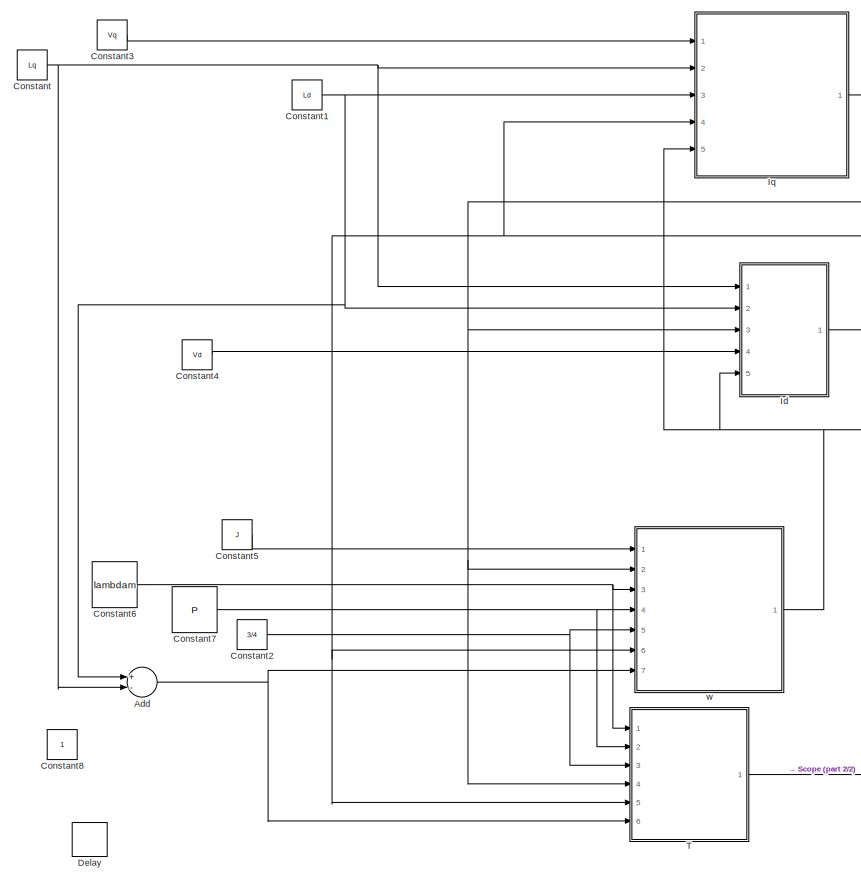
[diagram: root canvas - part 1/2, left side, full height]
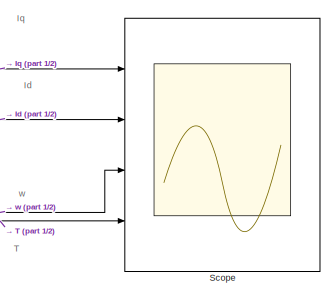
[diagram: root canvas - part 2/2, middle right region]
MODEL slx_f8c2c4e97d34
KIND model
CONFIG AbsTol = auto
CONFIG FixedStep = auto
CONFIG MaxStep = auto
CONFIG MinStep = auto
CONFIG RelTol = 1e-3
CONFIG SampleTimeConstraint = Unconstrained
CONFIG Solver = VariableStepAuto
CONFIG SolverMode = Auto
CONFIG SolverName = VariableStepAuto
CONFIG StartTime = 0.0
CONFIG StopTime = 10.0
BLOCK [Sum] Add
  InputSameDT = off
  Inputs = +-
  OutDataTypeStr = Inherit: Inherit via internal rule
  Ports = [2, 1]
  SaturateOnIntegerOverflow = off
BLOCK [Constant] Constant
  Value = Lq
BLOCK [Constant] Constant1
  Value = Ld
BLOCK [Constant] Constant2
  Value = 3/4
BLOCK [Constant] Constant3
  Value = Vq
BLOCK [Constant] Constant4
  Value = Vd
BLOCK [Constant] Constant5
  Value = J
BLOCK [Constant] Constant6
  Value = lambdam
BLOCK [Constant] Constant7
  Value = P
BLOCK [Constant] Constant8
BLOCK [Delay] Delay
  DelayLength = 1
  InitialCondition = 0
  InputPortMap = u0
  Ports = [1, 1]
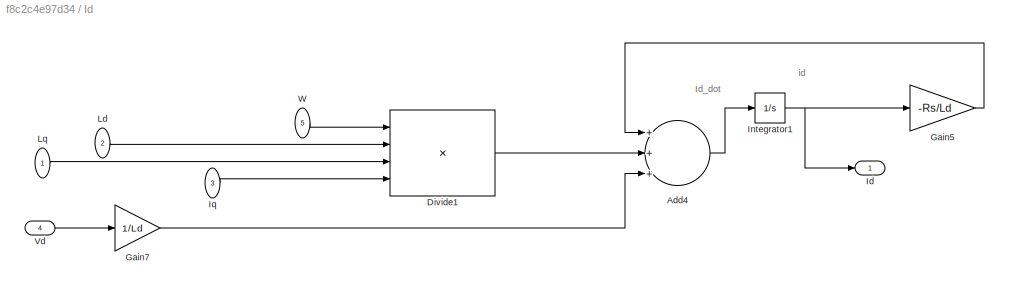
BLOCK [SubSystem] Id
  Ports = [5, 1]
  RequestExecContextInheritance = off
  Variant = off
BLOCK [Sum] Id/Add4
  InputSameDT = off
  Inputs = +++
  OutDataTypeStr = Inherit: Inherit via internal rule
  Ports = [3, 1]
  SaturateOnIntegerOverflow = off
BLOCK [Product] Id/Divide1
  InputSameDT = off
  Inputs = */**
  OutDataTypeStr = Inherit: Inherit via internal rule
  Ports = [4, 1]
  RndMeth = Floor
  SaturateOnIntegerOverflow = off
BLOCK [Gain] Id/Gain5
  Gain = -Rs/Ld
  OutDataTypeStr = Inherit: Inherit via internal rule
  ParamDataTypeStr = Inherit: Inherit via internal rule
  SaturateOnIntegerOverflow = off
BLOCK [Gain] Id/Gain7
  Gain = 1/Ld
  OutDataTypeStr = Inherit: Inherit via internal rule
  ParamDataTypeStr = Inherit: Inherit via internal rule
  SaturateOnIntegerOverflow = off
BLOCK [Outport] Id/Id
  IconDisplay = Port number
BLOCK [Integrator] Id/Integrator1
  Ports = [1, 1]
BLOCK [Inport] Id/Iq
  IconDisplay = Port number
  Port = 3
BLOCK [Inport] Id/Ld
  IconDisplay = Port number
  Port = 2
BLOCK [Inport] Id/Lq 
  IconDisplay = Port number
BLOCK [Inport] Id/Vd
  IconDisplay = Port number
  Port = 4
BLOCK [Inport] Id/W
  IconDisplay = Port number
  Port = 5
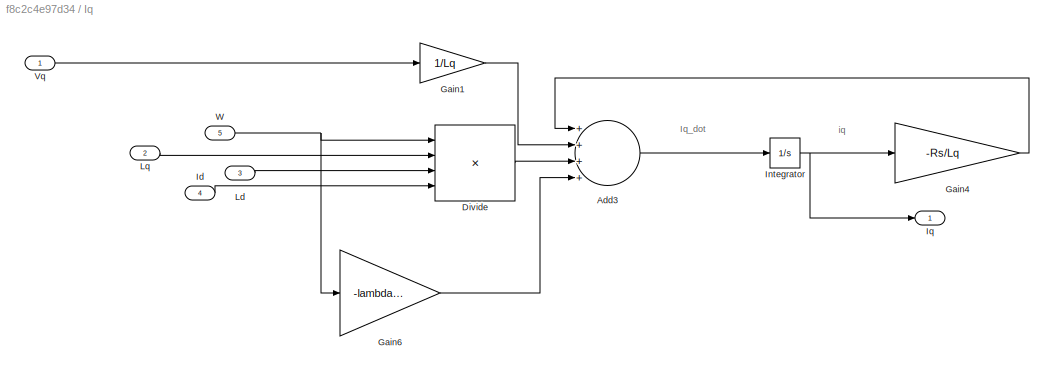
BLOCK [SubSystem] Iq
  Ports = [5, 1]
  RequestExecContextInheritance = off
  Variant = off
BLOCK [Sum] Iq/Add3
  InputSameDT = off
  Inputs = ++++
  OutDataTypeStr = Inherit: Inherit via internal rule
  Ports = [4, 1]
  SaturateOnIntegerOverflow = off
BLOCK [Product] Iq/Divide
  InputSameDT = off
  Inputs = */**
  OutDataTypeStr = Inherit: Inherit via internal rule
  Ports = [4, 1]
  RndMeth = Floor
  SaturateOnIntegerOverflow = off
BLOCK [Gain] Iq/Gain1
  Gain = 1/Lq
  OutDataTypeStr = Inherit: Inherit via internal rule
  ParamDataTypeStr = Inherit: Inherit via internal rule
  SaturateOnIntegerOverflow = off
BLOCK [Gain] Iq/Gain4
  Gain = -Rs/Lq
  OutDataTypeStr = Inherit: Inherit via internal rule
  ParamDataTypeStr = Inherit: Inherit via internal rule
  SaturateOnIntegerOverflow = off
BLOCK [Gain] Iq/Gain6
  Gain = -lambdam/Lq
  OutDataTypeStr = Inherit: Inherit via internal rule
  ParamDataTypeStr = Inherit: Inherit via internal rule
  SaturateOnIntegerOverflow = off
BLOCK [Inport] Iq/Id
  IconDisplay = Port number
  Port = 4
BLOCK [Integrator] Iq/Integrator
  Ports = [1, 1]
BLOCK [Outport] Iq/Iq
  IconDisplay = Port number
BLOCK [Inport] Iq/Ld
  IconDisplay = Port number
  Port = 3
BLOCK [Inport] Iq/Lq
  IconDisplay = Port number
  Port = 2
BLOCK [Inport] Iq/Vq
  IconDisplay = Port number
BLOCK [Inport] Iq/W
  IconDisplay = Port number
  Port = 5
BLOCK [Scope] Scope
  NumInputPorts = 4
  Ports = [4]
  ScopeSpecificationString = Simulink.scopes.TimeScopeBlockCfg('CurrentConfiguration', extmgr.ConfigurationSet(extmgr.Configuration('Core','General UI',true),extmgr.Configuration('Core','Source UI',true),extmgr.Configuration('Sources','WiredSimulink',true),extmgr.Configuration('Visuals','Time Domain',true,'SerializedDisplays',{struct('MinYLimReal','-10','MaxYLimReal','10','YLabelReal','','MinYLimMag','0','MaxYLimMag','10','Le...<+1278ch>
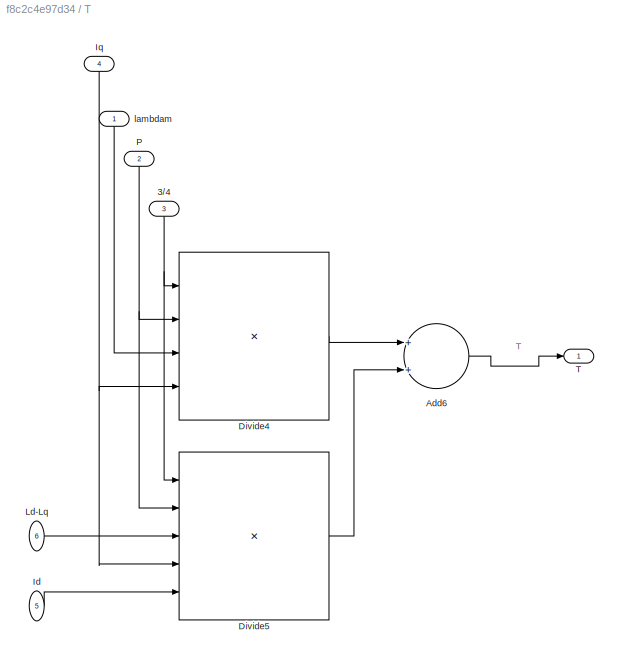
BLOCK [SubSystem] T
  Ports = [6, 1]
  RequestExecContextInheritance = off
  Variant = off
BLOCK [Inport] T/3//4
  IconDisplay = Port number
  Port = 3
BLOCK [Sum] T/Add6
  InputSameDT = off
  OutDataTypeStr = Inherit: Inherit via internal rule
  Ports = [2, 1]
  SaturateOnIntegerOverflow = off
BLOCK [Product] T/Divide4
  InputSameDT = off
  Inputs = ****
  OutDataTypeStr = Inherit: Inherit via internal rule
  Ports = [4, 1]
  RndMeth = Floor
  SaturateOnIntegerOverflow = off
BLOCK [Product] T/Divide5
  InputSameDT = off
  Inputs = *****
  OutDataTypeStr = Inherit: Inherit via internal rule
  Ports = [5, 1]
  RndMeth = Floor
  SaturateOnIntegerOverflow = off
BLOCK [Inport] T/Id
  IconDisplay = Port number
  Port = 5
BLOCK [Inport] T/Iq
  IconDisplay = Port number
  Port = 4
BLOCK [Inport] T/Ld-Lq
  IconDisplay = Port number
  Port = 6
BLOCK [Inport] T/P
  IconDisplay = Port number
  Port = 2
BLOCK [Outport] T/T
  IconDisplay = Port number
BLOCK [Inport] T/lambdam
  IconDisplay = Port number
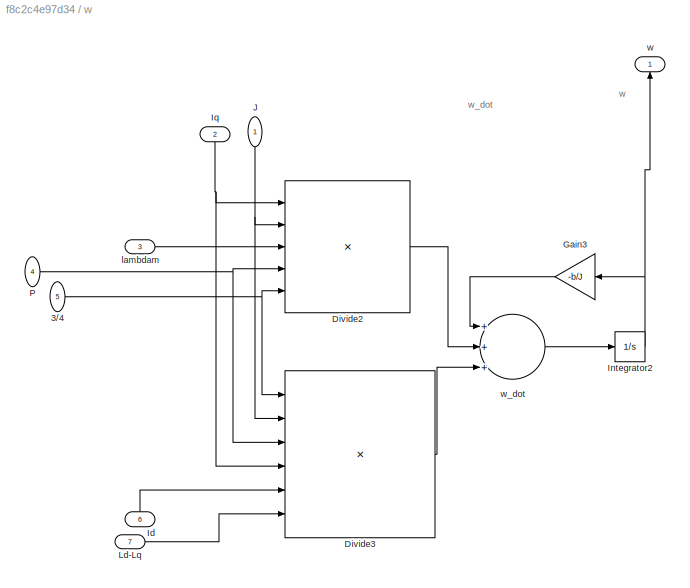
BLOCK [SubSystem] w
  Ports = [7, 1]
  RequestExecContextInheritance = off
  Variant = off
BLOCK [Inport] w/3//4 
  IconDisplay = Port number
  Port = 5
BLOCK [Product] w/Divide2
  InputSameDT = off
  Inputs = */***
  OutDataTypeStr = Inherit: Inherit via internal rule
  Ports = [5, 1]
  RndMeth = Floor
  SaturateOnIntegerOverflow = off
BLOCK [Product] w/Divide3
  InputSameDT = off
  Inputs = */****
  OutDataTypeStr = Inherit: Inherit via internal rule
  Ports = [6, 1]
  RndMeth = Floor
  SaturateOnIntegerOverflow = off
BLOCK [Gain] w/Gain3
  Gain = -b/J
  OutDataTypeStr = Inherit: Inherit via internal rule
  ParamDataTypeStr = Inherit: Inherit via internal rule
  SaturateOnIntegerOverflow = off
BLOCK [Inport] w/Id
  IconDisplay = Port number
  Port = 6
BLOCK [Integrator] w/Integrator2
  Ports = [1, 1]
BLOCK [Inport] w/Iq
  IconDisplay = Port number
  Port = 2
BLOCK [Inport] w/J
  IconDisplay = Port number
BLOCK [Inport] w/Ld-Lq
  IconDisplay = Port number
  Port = 7
BLOCK [Inport] w/P
  IconDisplay = Port number
  Port = 4
BLOCK [Inport] w/lambdam
  IconDisplay = Port number
  Port = 3
BLOCK [Outport] w/w
  IconDisplay = Port number
BLOCK [Sum] w/w_dot
  InputSameDT = off
  Inputs = +++
  OutDataTypeStr = Inherit: Inherit via internal rule
  Ports = [3, 1]
  SaturateOnIntegerOverflow = off
ANNOTATION (root): Id
ANNOTATION (root): Iq
ANNOTATION (root): T
ANNOTATION (root): w
ANNOTATION Id: Id_dot
ANNOTATION Id: id
ANNOTATION Iq: Iq_dot
ANNOTATION Iq: iq
ANNOTATION T: T
ANNOTATION w: w
ANNOTATION w: w_dot
NET Add:1 -> T:6, w:7
NET Constant1:1 -> Add:1, Id:2, Iq:3
NET Constant2:1 -> T:3, w:5
LINE Constant3:1 -> Iq:1
LINE Constant4:1 -> Id:4
LINE Constant5:1 -> w:1
NET Constant6:1 -> T:1, w:3
NET Constant7:1 -> T:2, w:4
NET Constant:1 -> Add:2, Id:1, Iq:2
LINE Id/Add4:1 -> Id/Integrator1:1
LINE Id/Divide1:1 -> Id/Add4:2
LINE Id/Gain5:1 -> Id/Add4:1
LINE Id/Gain7:1 -> Id/Add4:3
NET Id/Integrator1:1 -> Id/Gain5:1, Id/Id:1
LINE Id/Iq:1 -> Id/Divide1:4
LINE Id/Ld:1 -> Id/Divide1:2
LINE Id/Lq :1 -> Id/Divide1:3
LINE Id/Vd:1 -> Id/Gain7:1
LINE Id/W:1 -> Id/Divide1:1
NET Id:1 -> Iq:4, Scope:2, T:5, w:6
LINE Iq/Add3:1 -> Iq/Integrator:1
LINE Iq/Divide:1 -> Iq/Add3:3
LINE Iq/Gain1:1 -> Iq/Add3:2
LINE Iq/Gain4:1 -> Iq/Add3:1
LINE Iq/Gain6:1 -> Iq/Add3:4
LINE Iq/Id:1 -> Iq/Divide:4
NET Iq/Integrator:1 -> Iq/Gain4:1, Iq/Iq:1
LINE Iq/Ld:1 -> Iq/Divide:3
LINE Iq/Lq:1 -> Iq/Divide:2
LINE Iq/Vq:1 -> Iq/Gain1:1
NET Iq/W:1 -> Iq/Divide:1, Iq/Gain6:1
NET Iq:1 -> Id:3, Scope:1, T:4, w:2
NET T/3//4:1 -> T/Divide4:1, T/Divide5:1
LINE T/Add6:1 -> T/T:1
LINE T/Divide4:1 -> T/Add6:1
LINE T/Divide5:1 -> T/Add6:2
LINE T/Id:1 -> T/Divide5:5
NET T/Iq:1 -> T/Divide4:4, T/Divide5:4
LINE T/Ld-Lq:1 -> T/Divide5:3
NET T/P:1 -> T/Divide4:2, T/Divide5:2
LINE T/lambdam:1 -> T/Divide4:3
LINE T:1 -> Scope:4
NET w/3//4 :1 -> w/Divide2:5, w/Divide3:1
LINE w/Divide2:1 -> w/w_dot:2
LINE w/Divide3:1 -> w/w_dot:3
LINE w/Gain3:1 -> w/w_dot:1
LINE w/Id:1 -> w/Divide3:5
NET w/Integrator2:1 -> w/Gain3:1, w/w:1
NET w/Iq:1 -> w/Divide2:1, w/Divide3:4
NET w/J:1 -> w/Divide2:2, w/Divide3:2
LINE w/Ld-Lq:1 -> w/Divide3:6
NET w/P:1 -> w/Divide2:4, w/Divide3:3
LINE w/lambdam:1 -> w/Divide2:3
LINE w/w_dot:1 -> w/Integrator2:1
NET w:1 -> Id:5, Iq:5, Scope:3
note: NET lines group one-source signal fan-out (src -> all destinations, sorted); 1:1 wires keep LINE
